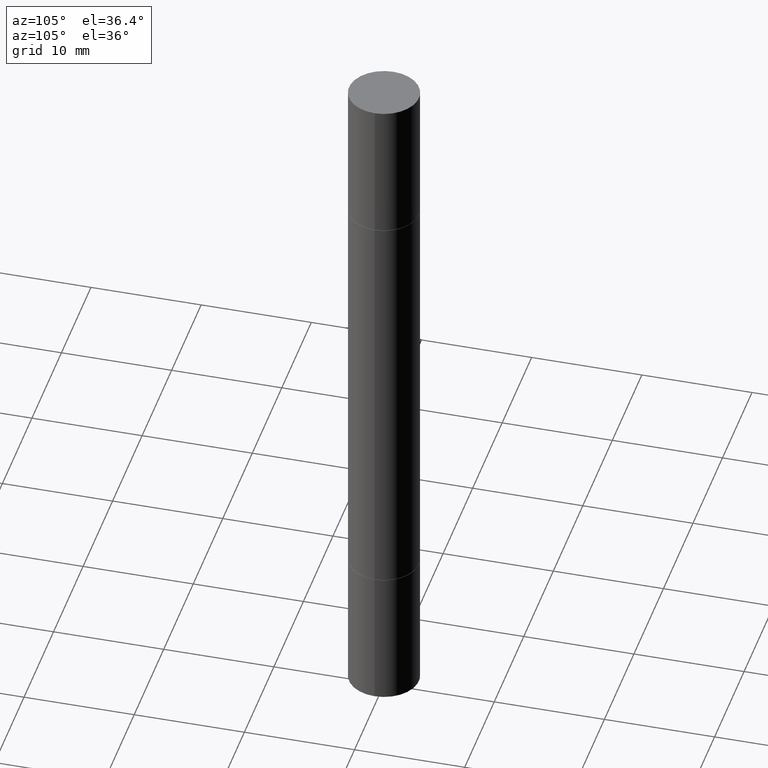
[diagram: clean part render]
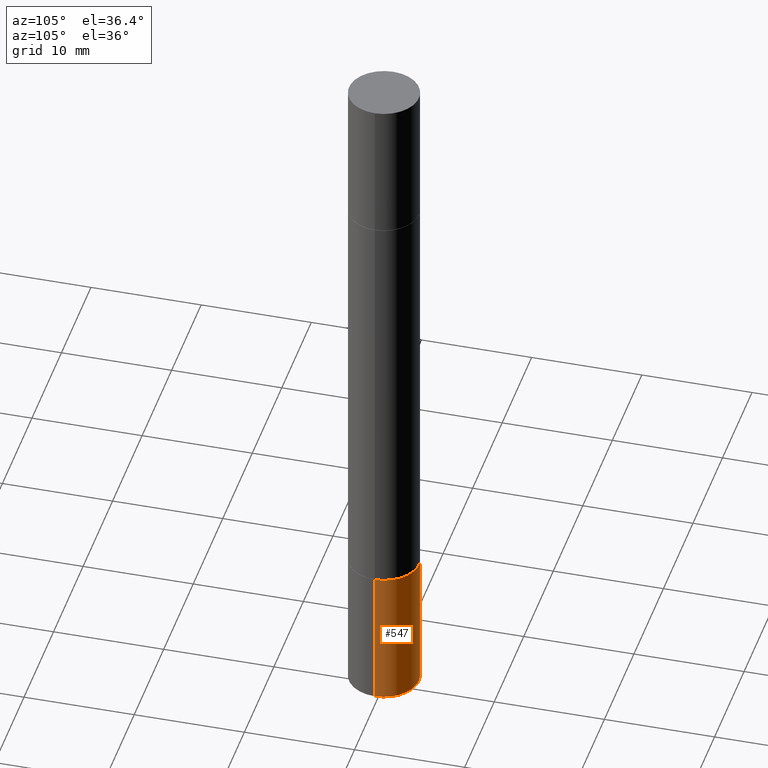
[diagram: same view with one face highlighted and labeled with its STEP entity id]
A machine part, auxiliary view. The second image highlights one B-rep face of the part: STEP entity #547.
In plain terms, the highlighted cylindrical surface (edge-blend (fillet) strip) has radius 3.175 mm, axis along (-0, 0, 1).
Its self-contained STEP definition (entity closure, byte-faithful):
#9 = EDGE_CURVE ( 'NONE', #71, #234, #39, .T. ) ;
#39 = LINE ( 'NONE', #529, #112 ) ;
#71 = VERTEX_POINT ( 'NONE', #94 ) ;
#73 = VERTEX_POINT ( 'NONE', #431 ) ;
#78 = CARTESIAN_POINT ( 'NONE',  ( -0.1250000000000000000, -6.967654592696952427E-15, -2.000000000000000000 ) ) ;
#89 = AXIS2_PLACEMENT_3D ( 'NONE', #546, #325, #219 ) ;
#94 = CARTESIAN_POINT ( 'NONE',  ( 0.1250000000000000000, -9.601573681818648281E-15, -2.500000000000000000 ) ) ;
#112 = VECTOR ( 'NONE', #208, 39.37007874015748143 ) ;
#118 = CARTESIAN_POINT ( 'NONE',  ( 0.1250000000000000000, -7.855833012397075293E-15, -2.000000000000000000 ) ) ;
#151 = CARTESIAN_POINT ( 'NONE',  ( 0.000000000000000000, 0.000000000000000000, 0.000000000000000000 ) ) ;
#181 = ORIENTED_EDGE ( 'NONE', *, *, #9, .F. ) ;
#207 = CARTESIAN_POINT ( 'NONE',  ( 6.113672015462842613E-29, -8.728703347107864943E-15, -2.500000000000000000 ) ) ;
#208 = DIRECTION ( 'NONE',  ( -2.445468806185136877E-29, 3.491481338843145188E-15, 1.000000000000000000 ) ) ;
#212 = EDGE_CURVE ( 'NONE', #234, #407, #659, .T. ) ;
#218 = ORIENTED_EDGE ( 'NONE', *, *, #675, .T. ) ;
#219 = DIRECTION ( 'NONE',  ( 1.000000000000000000, -6.982962677686270655E-15, 0.000000000000000000 ) ) ;
#220 = ORIENTED_EDGE ( 'NONE', *, *, #500, .T. ) ;
#234 = VERTEX_POINT ( 'NONE', #118 ) ;
#244 = DIRECTION ( 'NONE',  ( 1.000000000000000000, -6.982962677686266711E-15, 4.876176775795935793E-29 ) ) ;
#268 = VECTOR ( 'NONE', #569, 39.37007874015748143 ) ;
#321 = CARTESIAN_POINT ( 'NONE',  ( -0.1250000000000000000, 8.881784197001252323E-16, -6.148668862818632227E-30 ) ) ;
#325 = DIRECTION ( 'NONE',  ( -2.445468806185136597E-29, 3.491481338843145583E-15, 1.000000000000000000 ) ) ;
#342 = DIRECTION ( 'NONE',  ( 1.000000000000000000, -6.982962677686270655E-15, 0.000000000000000000 ) ) ;
#346 = ORIENTED_EDGE ( 'NONE', *, *, #212, .F. ) ;
#362 = CIRCLE ( 'NONE', #477, 0.1250000000000000000 ) ;
#365 = CYLINDRICAL_SURFACE ( 'NONE', #581, 0.1250000000000000000 ) ;
#407 = VERTEX_POINT ( 'NONE', #78 ) ;
#430 = FACE_OUTER_BOUND ( 'NONE', #478, .T. ) ;
#431 = CARTESIAN_POINT ( 'NONE',  ( -0.1250000000000000000, -6.967654592696952427E-15, -2.500000000000000000 ) ) ;
#443 = DIRECTION ( 'NONE',  ( -2.445468806185136597E-29, 3.491481338843145583E-15, 1.000000000000000000 ) ) ;
#477 = AXIS2_PLACEMENT_3D ( 'NONE', #207, #443, #342 ) ;
#478 = EDGE_LOOP ( 'NONE', ( #218, #220, #346, #181 ) ) ;
#500 = EDGE_CURVE ( 'NONE', #73, #407, #575, .T. ) ;
#529 = CARTESIAN_POINT ( 'NONE',  ( 0.1250000000000000000, -8.728703347107833388E-16, 6.095220969744919741E-30 ) ) ;
#546 = CARTESIAN_POINT ( 'NONE',  ( 4.890937612370273194E-29, -6.982962677686291165E-15, -2.000000000000000000 ) ) ;
#547 = ADVANCED_FACE ( 'NONE', ( #430 ), #365, .T. ) ;
#569 = DIRECTION ( 'NONE',  ( -2.445468806185136877E-29, 3.491481338843145188E-15, 1.000000000000000000 ) ) ;
#575 = LINE ( 'NONE', #321, #268 ) ;
#581 = AXIS2_PLACEMENT_3D ( 'NONE', #151, #627, #244 ) ;
#627 = DIRECTION ( 'NONE',  ( -2.445468806185136597E-29, 3.491481338843145583E-15, 1.000000000000000000 ) ) ;
#659 = CIRCLE ( 'NONE', #89, 0.1250000000000000000 ) ;
#675 = EDGE_CURVE ( 'NONE', #71, #73, #362, .T. ) ;